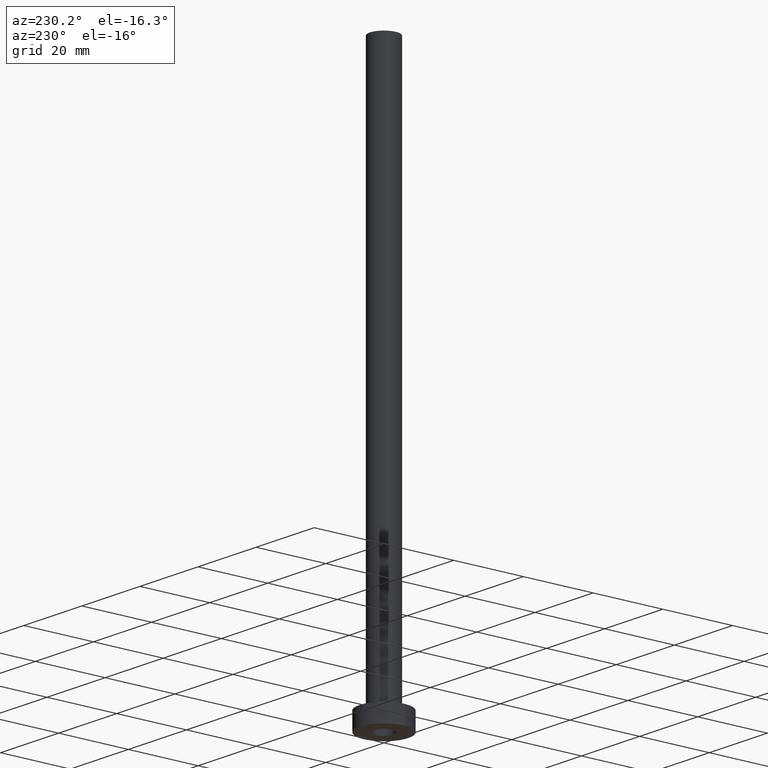
[diagram: clean part render]
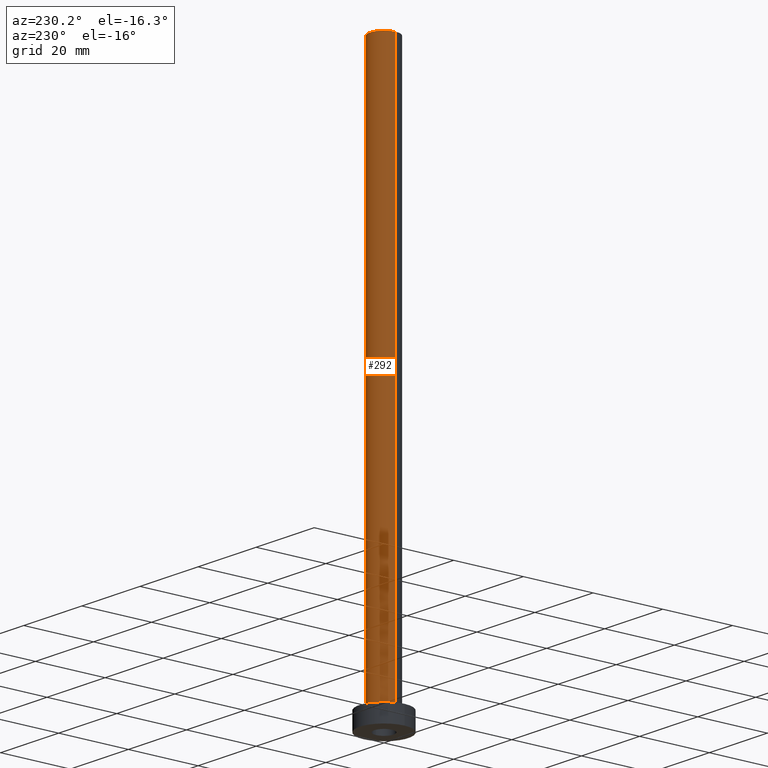
[diagram: same view with one face highlighted and labeled with its STEP entity id]
A machine part, auxiliary view. The second image highlights one B-rep face of the part: STEP entity #292.
In plain terms, the highlighted cylindrical surface (edge-blend (fillet) strip) has radius 4 mm, axis along (-0, -0, -1).
Its self-contained STEP definition (entity closure, byte-faithful):
#11 = EDGE_LOOP ( 'NONE', ( #12, #327, #432, #411 ) ) ;
#12 = ORIENTED_EDGE ( 'NONE', *, *, #398, .F. ) ;
#14 = CIRCLE ( 'NONE', #458, 4.000000000000000000 ) ;
#30 = DIRECTION ( 'NONE',  ( 1.000000000000000000, 0.000000000000000000, 0.000000000000000000 ) ) ;
#47 = FACE_OUTER_BOUND ( 'NONE', #11, .T. ) ;
#54 = LINE ( 'NONE', #375, #77 ) ;
#55 = VERTEX_POINT ( 'NONE', #443 ) ;
#63 = DIRECTION ( 'NONE',  ( -0.000000000000000000, -0.000000000000000000, -1.000000000000000000 ) ) ;
#77 = VECTOR ( 'NONE', #63, 1000.000000000000000 ) ;
#99 = VERTEX_POINT ( 'NONE', #168 ) ;
#100 = AXIS2_PLACEMENT_3D ( 'NONE', #442, #131, #165 ) ;
#120 = DIRECTION ( 'NONE',  ( -0.000000000000000000, -0.000000000000000000, -1.000000000000000000 ) ) ;
#131 = DIRECTION ( 'NONE',  ( 0.000000000000000000, 0.000000000000000000, 1.000000000000000000 ) ) ;
#158 = CYLINDRICAL_SURFACE ( 'NONE', #456, 4.000000000000000000 ) ;
#165 = DIRECTION ( 'NONE',  ( 1.000000000000000000, 0.000000000000000000, 0.000000000000000000 ) ) ;
#168 = CARTESIAN_POINT ( 'NONE',  ( 4.000000000000000000, 4.898587196589412829E-16, 160.0000000000000000 ) ) ;
#175 = CARTESIAN_POINT ( 'NONE',  ( 0.000000000000000000, 0.000000000000000000, 5.500000000000005329 ) ) ;
#186 = EDGE_CURVE ( 'NONE', #192, #55, #14, .T. ) ;
#188 = VERTEX_POINT ( 'NONE', #309 ) ;
#192 = VERTEX_POINT ( 'NONE', #451 ) ;
#197 = VECTOR ( 'NONE', #431, 1000.000000000000000 ) ;
#218 = LINE ( 'NONE', #357, #197 ) ;
#292 = ADVANCED_FACE ( 'NONE', ( #47 ), #158, .T. ) ;
#300 = EDGE_CURVE ( 'NONE', #188, #55, #218, .T. ) ;
#309 = CARTESIAN_POINT ( 'NONE',  ( -4.000000000000000000, 0.000000000000000000, 160.0000000000000000 ) ) ;
#327 = ORIENTED_EDGE ( 'NONE', *, *, #384, .T. ) ;
#357 = CARTESIAN_POINT ( 'NONE',  ( -4.000000000000000000, 0.000000000000000000, 160.0000000000000000 ) ) ;
#375 = CARTESIAN_POINT ( 'NONE',  ( 4.000000000000000000, 4.898587196589412829E-16, 160.0000000000000000 ) ) ;
#381 = CIRCLE ( 'NONE', #100, 4.000000000000000000 ) ;
#384 = EDGE_CURVE ( 'NONE', #99, #192, #54, .T. ) ;
#391 = DIRECTION ( 'NONE',  ( -1.000000000000000000, 0.000000000000000000, 0.000000000000000000 ) ) ;
#398 = EDGE_CURVE ( 'NONE', #99, #188, #381, .T. ) ;
#399 = CARTESIAN_POINT ( 'NONE',  ( 0.000000000000000000, 0.000000000000000000, 160.0000000000000000 ) ) ;
#411 = ORIENTED_EDGE ( 'NONE', *, *, #300, .F. ) ;
#431 = DIRECTION ( 'NONE',  ( -0.000000000000000000, -0.000000000000000000, -1.000000000000000000 ) ) ;
#432 = ORIENTED_EDGE ( 'NONE', *, *, #186, .T. ) ;
#442 = CARTESIAN_POINT ( 'NONE',  ( 0.000000000000000000, 0.000000000000000000, 160.0000000000000000 ) ) ;
#443 = CARTESIAN_POINT ( 'NONE',  ( -4.000000000000000000, 0.000000000000000000, 5.500000000000005329 ) ) ;
#451 = CARTESIAN_POINT ( 'NONE',  ( 4.000000000000000000, 4.898587196589412829E-16, 5.500000000000005329 ) ) ;
#455 = DIRECTION ( 'NONE',  ( 0.000000000000000000, 0.000000000000000000, 1.000000000000000000 ) ) ;
#456 = AXIS2_PLACEMENT_3D ( 'NONE', #399, #120, #391 ) ;
#458 = AXIS2_PLACEMENT_3D ( 'NONE', #175, #455, #30 ) ;